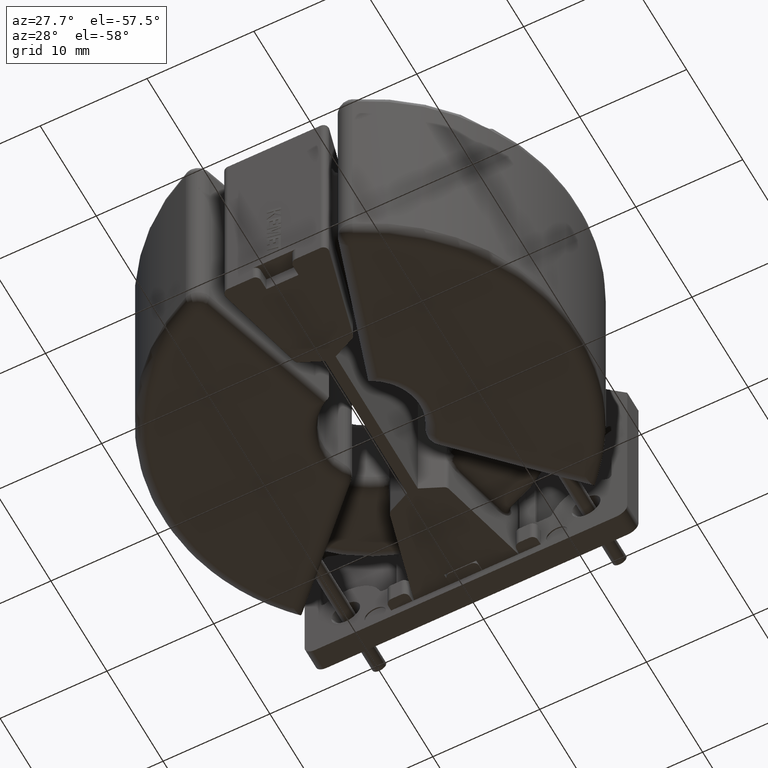
[diagram: clean part render]
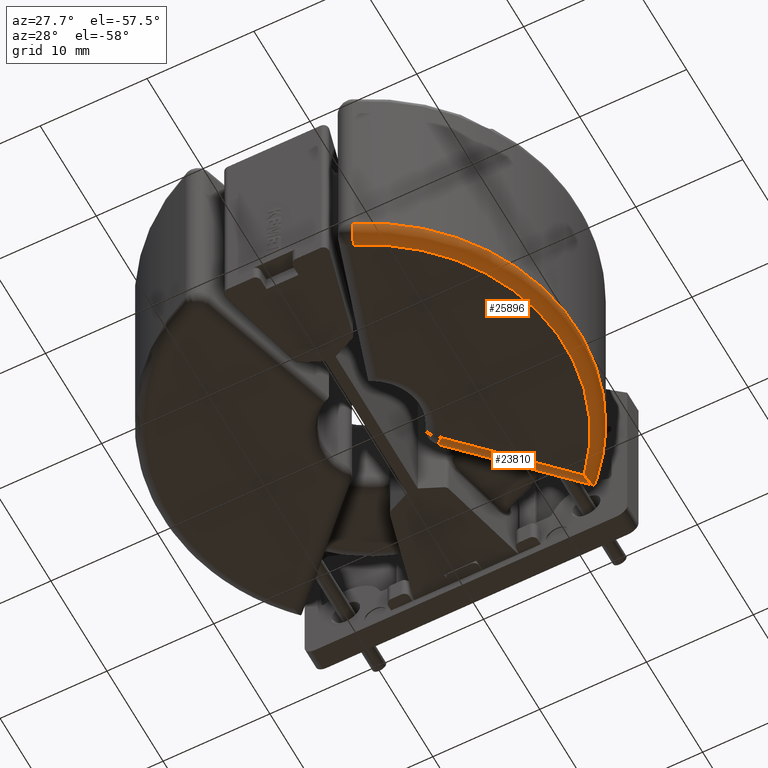
[diagram: same view with one multi-face feature highlighted, each face labeled with its STEP entity id]
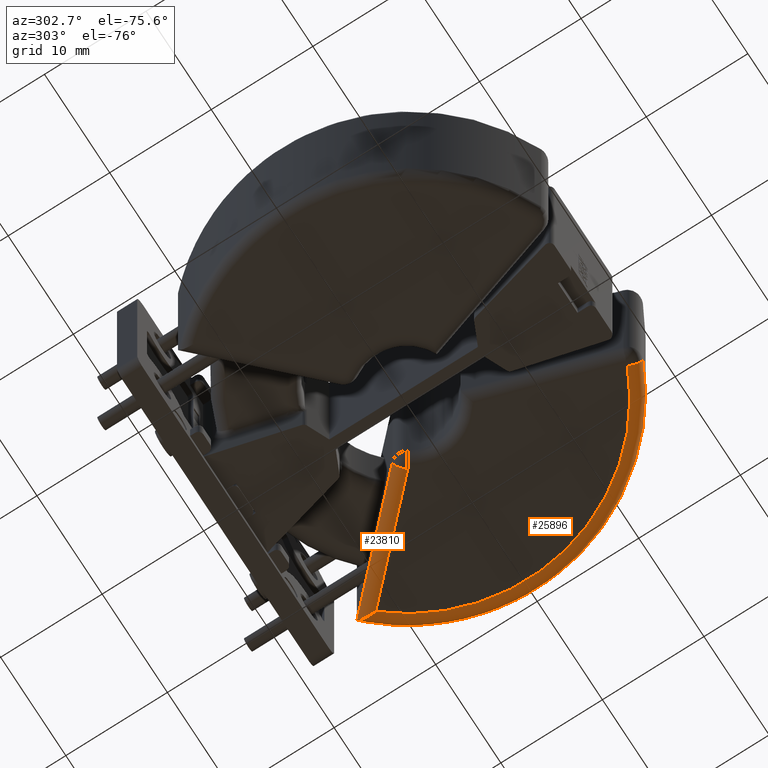
[diagram: same view with one multi-face feature highlighted, each face labeled with its STEP entity id]
A machine part, auxiliary view. The highlighted faces form ONE feature: a constant-radius fillet chain: 2 tangent blend faces with common blend radius 1.3 mm. The faces share edges in the B-rep.
A second angle (auxiliary view) of the same feature is appended — it is thin or edge-on in the first view.
Their STEP definitions:
[1] entity #23810 (Cylinder):
#1393 = VECTOR ( 'NONE', #14002, 999.9999999999998863 ) ;
#3097 = DIRECTION ( 'NONE',  ( -0.7071067811865435759, -0.7071067811865515695, 3.508549390116002272E-18 ) ) ;
#3299 = CYLINDRICAL_SURFACE ( 'NONE', #26102, 1.300000000000000044 ) ;
#3373 = CARTESIAN_POINT ( 'NONE',  ( 14.64322572643907350, 12.80474809535419922, -5.575000000000007283 ) ) ;
#3578 = DIRECTION ( 'NONE',  ( 0.7071067811865434649, 0.7071067811865515695, -3.508549390116001501E-18 ) ) ;
#4158 = EDGE_LOOP ( 'NONE', ( #16703, #26617, #14200, #18251 ) ) ;
#4771 = CARTESIAN_POINT ( 'NONE',  ( 13.72398691089655465, 13.72398691089670564, -4.275000000000008349 ) ) ;
#5613 = CARTESIAN_POINT ( 'NONE',  ( 13.72215371064375233, 13.23775896895613435, -5.169626468387007456 ) ) ;
#6952 = DIRECTION ( 'NONE',  ( 0.7071067811865513475, -0.7071067811865436870, 0.000000000000000000 ) ) ;
#8061 = CARTESIAN_POINT ( 'NONE',  ( 13.71441978924257832, 12.67952035887549833, -5.453755119429397169 ) ) ;
#8628 = AXIS2_PLACEMENT_3D ( 'NONE', #11750, #24036, #6952 ) ;
#9735 = CARTESIAN_POINT ( 'NONE',  ( 13.70495035811327078, 12.27082746737877805, -5.551942134904135351 ) ) ;
#11501 = LINE ( 'NONE', #3373, #1393 ) ;
#11750 = CARTESIAN_POINT ( 'NONE',  ( 4.916112593884771620, 3.077634962799782326, -4.275000000000008349 ) ) ;
#11937 = CARTESIAN_POINT ( 'NONE',  ( 13.71773286447816886, 12.87503535407192423, -5.380141497387757710 ) ) ;
#11975 = CARTESIAN_POINT ( 'NONE',  ( 4.101219330881974656, 2.262741699796974260, -4.275000000000008349 ) ) ;
#12024 = EDGE_CURVE ( 'NONE', #24041, #19305, #20981, .T. ) ;
#12116 = DIRECTION ( 'NONE',  ( -0.7071067811865514585, 0.7071067811865434649, 0.000000000000000000 ) ) ;
#13581 = EDGE_CURVE ( 'NONE', #22492, #17238, #20264, .T. ) ;
#13693 = CARTESIAN_POINT ( 'NONE',  ( 4.916112593884772508, 3.077634962799781437, -5.575000000000007283 ) ) ;
#13888 = CARTESIAN_POINT ( 'NONE',  ( 13.72319309510781338, 13.40269181512425689, -5.033008410409071764 ) ) ;
#14002 = DIRECTION ( 'NONE',  ( 0.7071067811865435759, 0.7071067811865515695, -3.508549390116002272E-18 ) ) ;
#14035 = CARTESIAN_POINT ( 'NONE',  ( 13.72407177475210460, 13.64827747602720187, -4.691144910352742059 ) ) ;
#14200 = ORIENTED_EDGE ( 'NONE', *, *, #13581, .F. ) ;
#15267 = EDGE_CURVE ( 'NONE', #17238, #24041, #19662, .T. ) ;
#16340 = CARTESIAN_POINT ( 'NONE',  ( 13.69886952057952101, 12.06177301805884916, -5.574999999999996625 ) ) ;
#16703 = ORIENTED_EDGE ( 'NONE', *, *, #12024, .F. ) ;
#17238 = VERTEX_POINT ( 'NONE', #4771 ) ;
#17652 = FACE_OUTER_BOUND ( 'NONE', #4158, .T. ) ;
#18251 = ORIENTED_EDGE ( 'NONE', *, *, #23177, .F. ) ;
#18434 = CARTESIAN_POINT ( 'NONE',  ( 13.72398691089655465, 13.72398691089670564, -4.275000000000008349 ) ) ;
#19305 = VERTEX_POINT ( 'NONE', #13693 ) ;
#19662 = LINE ( 'NONE', #26557, #25498 ) ;
#20264 = B_SPLINE_CURVE_WITH_KNOTS ( 'NONE', 3,
 ( #22281, #16340, #9735, #8061, #11937, #5613, #13888, #14035, #20772, #18434 ),
 .UNSPECIFIED., .F., .F.,
 ( 4, 2, 2, 2, 4 ),
 ( -7.220115547415779975E-06, 0.0006193918751833162864, 0.001246003865914048232, 0.001872615856644780285, 0.002499227847375512339 ),
 .UNSPECIFIED. ) ;
#20772 = CARTESIAN_POINT ( 'NONE',  ( 13.72398691089655642, 13.72398691089670564, -4.487387192630085231 ) ) ;
#20981 = CIRCLE ( 'NONE', #8628, 1.299999999999999600 ) ;
#21864 = CARTESIAN_POINT ( 'NONE',  ( 3.996873778342254990, 3.996873778342283412, -4.275000000000008349 ) ) ;
#22281 = CARTESIAN_POINT ( 'NONE',  ( 13.69150952421957612, 11.85303189313469296, -5.574999999999994849 ) ) ;
#22492 = VERTEX_POINT ( 'NONE', #23884 ) ;
#23177 = EDGE_CURVE ( 'NONE', #19305, #22492, #11501, .T. ) ;
#23810 = ADVANCED_FACE ( 'NONE', ( #17652 ), #3299, .T. ) ;
#23884 = CARTESIAN_POINT ( 'NONE',  ( 13.69150952421957612, 11.85303189313469296, -5.574999999999994849 ) ) ;
#24036 = DIRECTION ( 'NONE',  ( -0.7071067811865436870, -0.7071067811865514585, 3.508549390121136030E-18 ) ) ;
#24041 = VERTEX_POINT ( 'NONE', #21864 ) ;
#25498 = VECTOR ( 'NONE', #3097, 999.9999999999998863 ) ;
#26102 = AXIS2_PLACEMENT_3D ( 'NONE', #11975, #3578, #12116 ) ;
#26557 = CARTESIAN_POINT ( 'NONE',  ( 3.181980515339448701, 3.181980515339483340, -4.275000000000008349 ) ) ;
#26617 = ORIENTED_EDGE ( 'NONE', *, *, #15267, .F. ) ;
[2] entity #25896 (Torus):
#503 = EDGE_CURVE ( 'NONE', #22492, #10085, #19182, .T. ) ;
#1325 = DIRECTION ( 'NONE',  ( 7.298371249299875769E-16, 1.000000000000000000, -8.796530319306819215E-17 ) ) ;
#2791 = FACE_OUTER_BOUND ( 'NONE', #19546, .T. ) ;
#3103 = CARTESIAN_POINT ( 'NONE',  ( -0.2205422252612233569, -0.2205422252612337375, -4.275000000000008349 ) ) ;
#3227 = CIRCLE ( 'NONE', #13347, 19.72054222526122302 ) ;
#4771 = CARTESIAN_POINT ( 'NONE',  ( 13.72398691089655465, 13.72398691089670564, -4.275000000000008349 ) ) ;
#5067 = ORIENTED_EDGE ( 'NONE', *, *, #13581, .T. ) ;
#5490 = AXIS2_PLACEMENT_3D ( 'NONE', #24596, #7752, #20314 ) ;
#5613 = CARTESIAN_POINT ( 'NONE',  ( 13.72215371064375233, 13.23775896895613435, -5.169626468387007456 ) ) ;
#5632 = CIRCLE ( 'NONE', #17974, 1.299999999999999378 ) ;
#7332 = ORIENTED_EDGE ( 'NONE', *, *, #503, .F. ) ;
#7752 = DIRECTION ( 'NONE',  ( 6.442710090731450671E-17, -6.938893903907229610E-17, -1.000000000000000000 ) ) ;
#8061 = CARTESIAN_POINT ( 'NONE',  ( 13.71441978924257832, 12.67952035887549833, -5.453755119429397169 ) ) ;
#9478 = CARTESIAN_POINT ( 'NONE',  ( -0.2205422252612232736, -0.2205422252612340150, -5.575000000000007283 ) ) ;
#9735 = CARTESIAN_POINT ( 'NONE',  ( 13.70495035811327078, 12.27082746737877805, -5.551942134904135351 ) ) ;
#10085 = VERTEX_POINT ( 'NONE', #25334 ) ;
#11937 = CARTESIAN_POINT ( 'NONE',  ( 13.71773286447816886, 12.87503535407192423, -5.380141497387757710 ) ) ;
#13334 = DIRECTION ( 'NONE',  ( 0.4065591750611085575, -0.9136244508405139131, 0.000000000000000000 ) ) ;
#13347 = AXIS2_PLACEMENT_3D ( 'NONE', #3103, #20231, #1325 ) ;
#13581 = EDGE_CURVE ( 'NONE', #22492, #17238, #20264, .T. ) ;
#13888 = CARTESIAN_POINT ( 'NONE',  ( 13.72319309510781338, 13.40269181512425689, -5.033008410409071764 ) ) ;
#14035 = CARTESIAN_POINT ( 'NONE',  ( 13.72407177475210460, 13.64827747602720187, -4.691144910352742059 ) ) ;
#15396 = DIRECTION ( 'NONE',  ( -0.9136244508405140241, -0.4065591750611087241, -3.065146487160139751E-17 ) ) ;
#15812 = CARTESIAN_POINT ( 'NONE',  ( 7.268498226019362463, -17.04999999999999716, -4.275000000000004796 ) ) ;
#16135 = VERTEX_POINT ( 'NONE', #25926 ) ;
#16340 = CARTESIAN_POINT ( 'NONE',  ( 13.69886952057952101, 12.06177301805884916, -5.574999999999996625 ) ) ;
#17238 = VERTEX_POINT ( 'NONE', #4771 ) ;
#17974 = AXIS2_PLACEMENT_3D ( 'NONE', #15812, #15396, #13334 ) ;
#18293 = DIRECTION ( 'NONE',  ( -1.589174645302466821E-16, 1.000000000000000000, -4.708665615711012711E-17 ) ) ;
#18434 = CARTESIAN_POINT ( 'NONE',  ( 13.72398691089655465, 13.72398691089670564, -4.275000000000008349 ) ) ;
#19126 = EDGE_CURVE ( 'NONE', #10085, #16135, #5632, .T. ) ;
#19182 = CIRCLE ( 'NONE', #26702, 18.42054222526122587 ) ;
#19546 = EDGE_LOOP ( 'NONE', ( #5067, #22928, #21822, #7332 ) ) ;
#20071 = EDGE_CURVE ( 'NONE', #16135, #17238, #3227, .T. ) ;
#20231 = DIRECTION ( 'NONE',  ( -6.442710090731450671E-17, 6.938893903907229610E-17, 1.000000000000000000 ) ) ;
#20264 = B_SPLINE_CURVE_WITH_KNOTS ( 'NONE', 3,
 ( #22281, #16340, #9735, #8061, #11937, #5613, #13888, #14035, #20772, #18434 ),
 .UNSPECIFIED., .F., .F.,
 ( 4, 2, 2, 2, 4 ),
 ( -7.220115547415779975E-06, 0.0006193918751833162864, 0.001246003865914048232, 0.001872615856644780285, 0.002499227847375512339 ),
 .UNSPECIFIED. ) ;
#20314 = DIRECTION ( 'NONE',  ( -1.594371120374360852E-16, 1.000000000000000000, -6.938893903907230843E-17 ) ) ;
#20772 = CARTESIAN_POINT ( 'NONE',  ( 13.72398691089655642, 13.72398691089670564, -4.487387192630085231 ) ) ;
#21822 = ORIENTED_EDGE ( 'NONE', *, *, #19126, .F. ) ;
#22281 = CARTESIAN_POINT ( 'NONE',  ( 13.69150952421957612, 11.85303189313469296, -5.574999999999994849 ) ) ;
#22492 = VERTEX_POINT ( 'NONE', #23884 ) ;
#22928 = ORIENTED_EDGE ( 'NONE', *, *, #20071, .F. ) ;
#23884 = CARTESIAN_POINT ( 'NONE',  ( 13.69150952421957612, 11.85303189313469296, -5.574999999999994849 ) ) ;
#24433 = TOROIDAL_SURFACE ( 'NONE', #5490, 18.42054222526122587, 1.300000000000000044 ) ;
#24596 = CARTESIAN_POINT ( 'NONE',  ( -0.2205422252612233569, -0.2205422252612337375, -4.275000000000008349 ) ) ;
#25334 = CARTESIAN_POINT ( 'NONE',  ( 7.268498226019362463, -17.04999999999999716, -5.575000000000005507 ) ) ;
#25896 = ADVANCED_FACE ( 'NONE', ( #2791 ), #24433, .T. ) ;
#25926 = CARTESIAN_POINT ( 'NONE',  ( 7.797025153598802660, -18.23771178609266386, -4.275000000000006573 ) ) ;
#26452 = DIRECTION ( 'NONE',  ( 6.442710090731450671E-17, -6.938893903907229610E-17, -1.000000000000000000 ) ) ;
#26702 = AXIS2_PLACEMENT_3D ( 'NONE', #9478, #26452, #18293 ) ;